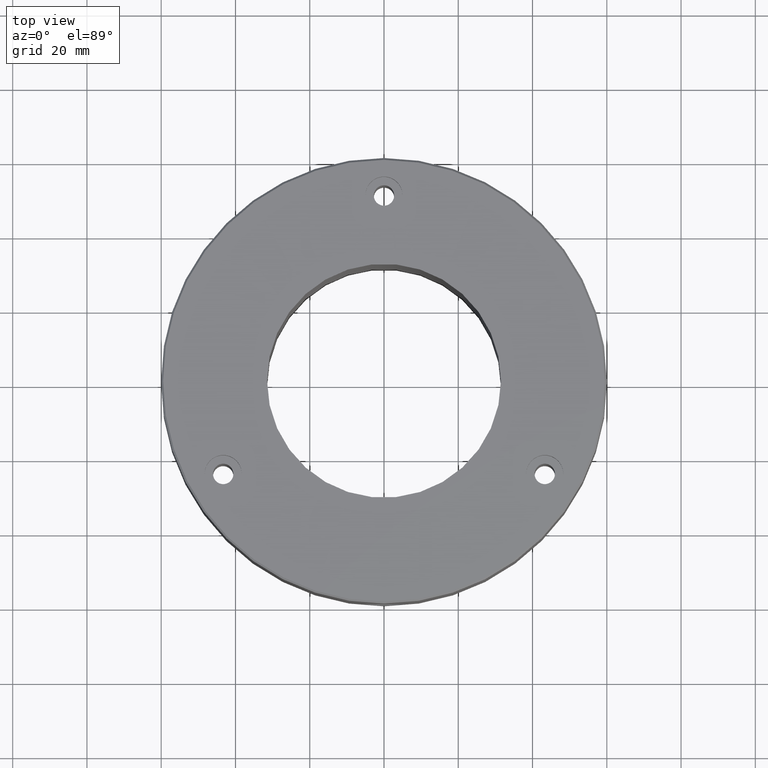
[diagram: clean part render]
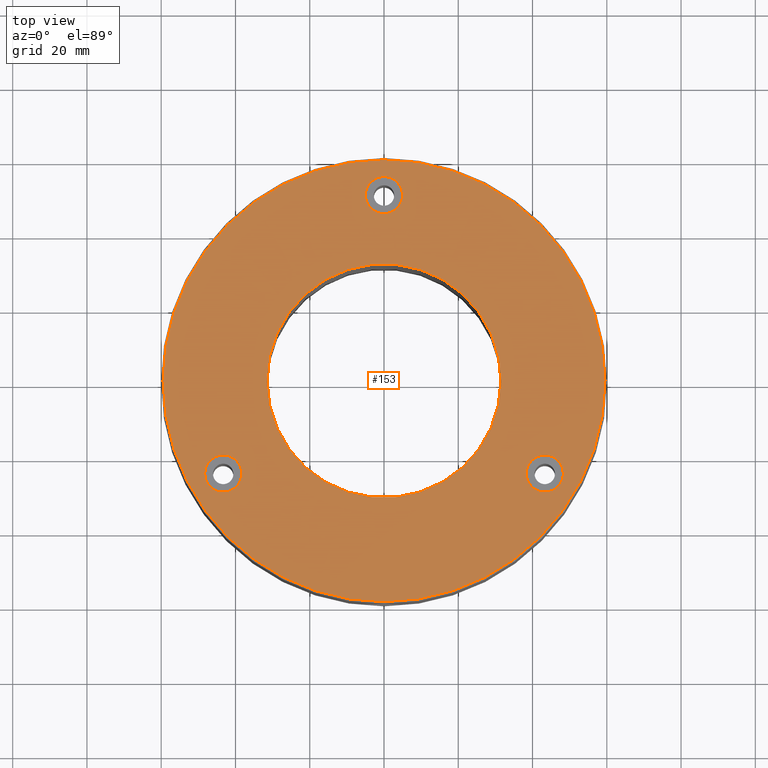
[diagram: same view with one face highlighted and labeled with its STEP entity id]
A machine part, top view. The second image highlights one B-rep face of the part: STEP entity #153.
In plain terms, the highlighted planar face has unit normal (0, -0, 1).
Its self-contained STEP definition (entity closure, byte-faithful):
#10 = AXIS2_PLACEMENT_3D ( 'NONE', #937, #460, #242 ) ;
#11 = FACE_BOUND ( 'NONE', #944, .T. ) ;
#44 = CARTESIAN_POINT ( 'NONE',  ( 0.000000000000000000, 50.00000000000000000, 0.000000000000000000 ) ) ;
#59 = CIRCLE ( 'NONE', #392, 31.50000000000000000 ) ;
#74 = FACE_BOUND ( 'NONE', #683, .T. ) ;
#81 = EDGE_CURVE ( 'NONE', #303, #606, #340, .T. ) ;
#91 = DIRECTION ( 'NONE',  ( -0.000000000000000000, -0.000000000000000000, 1.000000000000000000 ) ) ;
#92 = DIRECTION ( 'NONE',  ( 1.000000000000000000, 0.000000000000000000, 0.000000000000000000 ) ) ;
#139 = AXIS2_PLACEMENT_3D ( 'NONE', #306, #688, #399 ) ;
#148 = AXIS2_PLACEMENT_3D ( 'NONE', #44, #626, #264 ) ;
#153 = ADVANCED_FACE ( 'NONE', ( #943, #11, #1045, #74, #398 ), #676, .T. ) ;
#166 = AXIS2_PLACEMENT_3D ( 'NONE', #1250, #292, #856 ) ;
#169 = AXIS2_PLACEMENT_3D ( 'NONE', #961, #91, #488 ) ;
#181 = ORIENTED_EDGE ( 'NONE', *, *, #1030, .T. ) ;
#202 = VERTEX_POINT ( 'NONE', #322 ) ;
#207 = CARTESIAN_POINT ( 'NONE',  ( 0.000000000000000000, 0.000000000000000000, 0.000000000000000000 ) ) ;
#241 = DIRECTION ( 'NONE',  ( -1.000000000000000000, 0.000000000000000000, 0.000000000000000000 ) ) ;
#242 = DIRECTION ( 'NONE',  ( 1.000000000000000000, 0.000000000000000000, 0.000000000000000000 ) ) ;
#249 = ORIENTED_EDGE ( 'NONE', *, *, #1176, .T. ) ;
#258 = CIRCLE ( 'NONE', #10, 5.000000000000004441 ) ;
#264 = DIRECTION ( 'NONE',  ( 1.000000000000000000, 0.000000000000000000, 0.000000000000000000 ) ) ;
#265 = EDGE_CURVE ( 'NONE', #634, #202, #258, .T. ) ;
#270 = EDGE_CURVE ( 'NONE', #647, #615, #360, .T. ) ;
#274 = ORIENTED_EDGE ( 'NONE', *, *, #1248, .F. ) ;
#279 = AXIS2_PLACEMENT_3D ( 'NONE', #850, #752, #960 ) ;
#291 = VERTEX_POINT ( 'NONE', #1214 ) ;
#292 = DIRECTION ( 'NONE',  ( -0.000000000000000000, -0.000000000000000000, 1.000000000000000000 ) ) ;
#303 = VERTEX_POINT ( 'NONE', #1017 ) ;
#306 = CARTESIAN_POINT ( 'NONE',  ( -43.30127018922198801, -24.99999999999990052, 0.000000000000000000 ) ) ;
#313 = CARTESIAN_POINT ( 'NONE',  ( -5.000000000000000888, 50.00000000000000000, 0.000000000000000000 ) ) ;
#322 = CARTESIAN_POINT ( 'NONE',  ( 48.30127018922182458, -25.00000000000018829, 0.000000000000000000 ) ) ;
#326 = EDGE_LOOP ( 'NONE', ( #1031, #249 ) ) ;
#340 = CIRCLE ( 'NONE', #169, 59.50000000000003553 ) ;
#341 = CARTESIAN_POINT ( 'NONE',  ( 31.50000000000000000, 3.857637417314162689E-15, 0.000000000000000000 ) ) ;
#344 = DIRECTION ( 'NONE',  ( 1.000000000000000000, 0.000000000000000000, 0.000000000000000000 ) ) ;
#355 = EDGE_CURVE ( 'NONE', #291, #922, #655, .T. ) ;
#356 = DIRECTION ( 'NONE',  ( 0.000000000000000000, 0.000000000000000000, -1.000000000000000000 ) ) ;
#357 = ORIENTED_EDGE ( 'NONE', *, *, #1025, .F. ) ;
#360 = CIRCLE ( 'NONE', #148, 5.000000000000000888 ) ;
#392 = AXIS2_PLACEMENT_3D ( 'NONE', #823, #356, #241 ) ;
#398 = FACE_OUTER_BOUND ( 'NONE', #326, .T. ) ;
#399 = DIRECTION ( 'NONE',  ( 1.000000000000000000, 0.000000000000000000, 0.000000000000000000 ) ) ;
#432 = AXIS2_PLACEMENT_3D ( 'NONE', #815, #1211, #344 ) ;
#456 = EDGE_CURVE ( 'NONE', #202, #634, #734, .T. ) ;
#458 = DIRECTION ( 'NONE',  ( 1.000000000000000000, 0.000000000000000000, 0.000000000000000000 ) ) ;
#460 = DIRECTION ( 'NONE',  ( -0.000000000000000000, -0.000000000000000000, 1.000000000000000000 ) ) ;
#488 = DIRECTION ( 'NONE',  ( 1.000000000000000000, 0.000000000000000000, 0.000000000000000000 ) ) ;
#591 = CIRCLE ( 'NONE', #803, 59.50000000000003553 ) ;
#592 = DIRECTION ( 'NONE',  ( 0.000000000000000000, 0.000000000000000000, -1.000000000000000000 ) ) ;
#606 = VERTEX_POINT ( 'NONE', #684 ) ;
#615 = VERTEX_POINT ( 'NONE', #313 ) ;
#626 = DIRECTION ( 'NONE',  ( -0.000000000000000000, -0.000000000000000000, 1.000000000000000000 ) ) ;
#634 = VERTEX_POINT ( 'NONE', #1171 ) ;
#647 = VERTEX_POINT ( 'NONE', #695 ) ;
#655 = CIRCLE ( 'NONE', #166, 5.000000000000004441 ) ;
#676 = PLANE ( 'NONE',  #830 ) ;
#683 = EDGE_LOOP ( 'NONE', ( #1198, #181 ) ) ;
#684 = CARTESIAN_POINT ( 'NONE',  ( 59.50000000000003553, 7.317264624905437724E-15, 0.000000000000000000 ) ) ;
#687 = AXIS2_PLACEMENT_3D ( 'NONE', #207, #592, #1072 ) ;
#688 = DIRECTION ( 'NONE',  ( -0.000000000000000000, -0.000000000000000000, 1.000000000000000000 ) ) ;
#693 = EDGE_CURVE ( 'NONE', #807, #721, #59, .T. ) ;
#695 = CARTESIAN_POINT ( 'NONE',  ( 5.000000000000000888, 50.00000000000000000, 0.000000000000000000 ) ) ;
#721 = VERTEX_POINT ( 'NONE', #341 ) ;
#725 = DIRECTION ( 'NONE',  ( -0.000000000000000000, -0.000000000000000000, 1.000000000000000000 ) ) ;
#734 = CIRCLE ( 'NONE', #279, 5.000000000000004441 ) ;
#747 = CIRCLE ( 'NONE', #687, 31.50000000000000000 ) ;
#752 = DIRECTION ( 'NONE',  ( -0.000000000000000000, -0.000000000000000000, 1.000000000000000000 ) ) ;
#762 = DIRECTION ( 'NONE',  ( 0.000000000000000000, -0.000000000000000000, 1.000000000000000000 ) ) ;
#765 = CARTESIAN_POINT ( 'NONE',  ( -48.30127018922199511, -24.99999999999990052, 0.000000000000000000 ) ) ;
#803 = AXIS2_PLACEMENT_3D ( 'NONE', #1205, #725, #458 ) ;
#804 = CIRCLE ( 'NONE', #139, 5.000000000000004441 ) ;
#807 = VERTEX_POINT ( 'NONE', #1199 ) ;
#808 = EDGE_LOOP ( 'NONE', ( #914, #357 ) ) ;
#815 = CARTESIAN_POINT ( 'NONE',  ( 0.000000000000000000, 50.00000000000000000, 0.000000000000000000 ) ) ;
#817 = EDGE_LOOP ( 'NONE', ( #988, #274 ) ) ;
#823 = CARTESIAN_POINT ( 'NONE',  ( 0.000000000000000000, 0.000000000000000000, 0.000000000000000000 ) ) ;
#830 = AXIS2_PLACEMENT_3D ( 'NONE', #1246, #762, #92 ) ;
#850 = CARTESIAN_POINT ( 'NONE',  ( 43.30127018922182458, -25.00000000000018829, 0.000000000000000000 ) ) ;
#856 = DIRECTION ( 'NONE',  ( 1.000000000000000000, 0.000000000000000000, 0.000000000000000000 ) ) ;
#907 = ORIENTED_EDGE ( 'NONE', *, *, #456, .F. ) ;
#914 = ORIENTED_EDGE ( 'NONE', *, *, #355, .F. ) ;
#922 = VERTEX_POINT ( 'NONE', #765 ) ;
#937 = CARTESIAN_POINT ( 'NONE',  ( 43.30127018922182458, -25.00000000000018829, 0.000000000000000000 ) ) ;
#943 = FACE_BOUND ( 'NONE', #808, .T. ) ;
#944 = EDGE_LOOP ( 'NONE', ( #907, #1111 ) ) ;
#960 = DIRECTION ( 'NONE',  ( 1.000000000000000000, 0.000000000000000000, 0.000000000000000000 ) ) ;
#961 = CARTESIAN_POINT ( 'NONE',  ( 0.000000000000000000, 0.000000000000000000, 0.000000000000000000 ) ) ;
#988 = ORIENTED_EDGE ( 'NONE', *, *, #270, .F. ) ;
#1017 = CARTESIAN_POINT ( 'NONE',  ( -59.50000000000003553, 0.000000000000000000, 0.000000000000000000 ) ) ;
#1025 = EDGE_CURVE ( 'NONE', #922, #291, #804, .T. ) ;
#1030 = EDGE_CURVE ( 'NONE', #721, #807, #747, .T. ) ;
#1031 = ORIENTED_EDGE ( 'NONE', *, *, #81, .T. ) ;
#1045 = FACE_BOUND ( 'NONE', #817, .T. ) ;
#1072 = DIRECTION ( 'NONE',  ( -1.000000000000000000, 0.000000000000000000, 0.000000000000000000 ) ) ;
#1111 = ORIENTED_EDGE ( 'NONE', *, *, #265, .F. ) ;
#1171 = CARTESIAN_POINT ( 'NONE',  ( 38.30127018922181747, -25.00000000000018829, 0.000000000000000000 ) ) ;
#1176 = EDGE_CURVE ( 'NONE', #606, #303, #591, .T. ) ;
#1196 = CIRCLE ( 'NONE', #432, 5.000000000000000888 ) ;
#1198 = ORIENTED_EDGE ( 'NONE', *, *, #693, .T. ) ;
#1199 = CARTESIAN_POINT ( 'NONE',  ( -31.50000000000000000, 0.000000000000000000, 0.000000000000000000 ) ) ;
#1205 = CARTESIAN_POINT ( 'NONE',  ( 0.000000000000000000, 0.000000000000000000, 0.000000000000000000 ) ) ;
#1211 = DIRECTION ( 'NONE',  ( -0.000000000000000000, -0.000000000000000000, 1.000000000000000000 ) ) ;
#1214 = CARTESIAN_POINT ( 'NONE',  ( -38.30127018922198090, -24.99999999999990052, 0.000000000000000000 ) ) ;
#1246 = CARTESIAN_POINT ( 'NONE',  ( 0.000000000000000000, 0.000000000000000000, 0.000000000000000000 ) ) ;
#1248 = EDGE_CURVE ( 'NONE', #615, #647, #1196, .T. ) ;
#1250 = CARTESIAN_POINT ( 'NONE',  ( -43.30127018922198801, -24.99999999999990052, 0.000000000000000000 ) ) ;